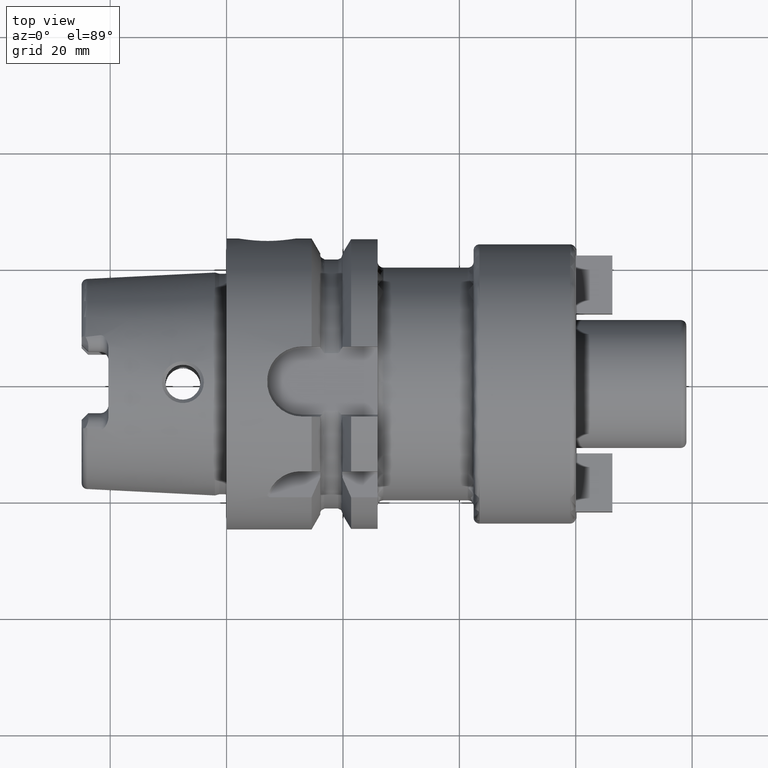
[diagram: clean part render]
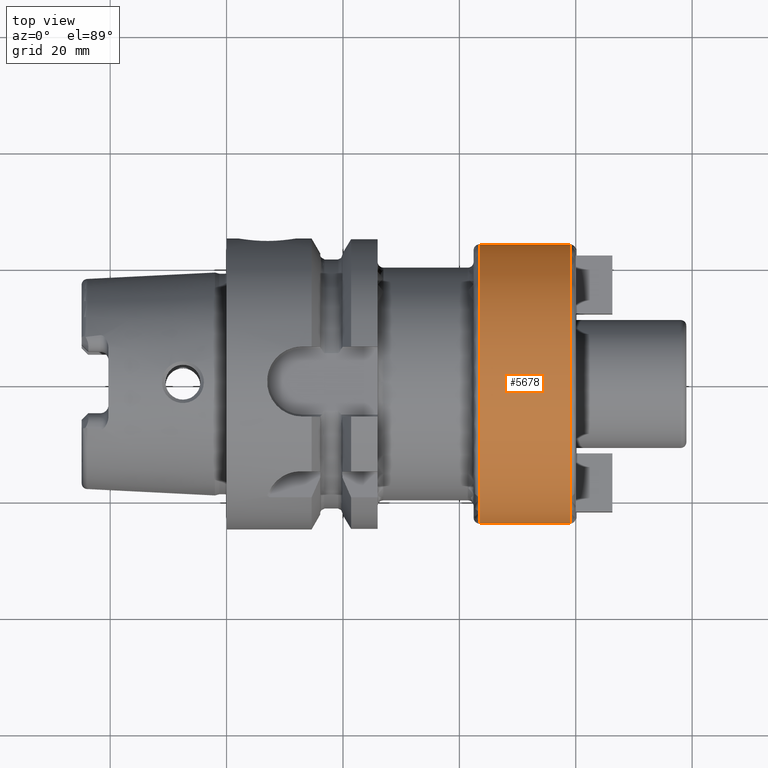
[diagram: same view with one face highlighted and labeled with its STEP entity id]
A machine part, top view. The second image highlights one B-rep face of the part: STEP entity #5678.
In plain terms, the highlighted cylindrical surface (partial cylindrical patch) has radius 24 mm, axis along (1, 0, 0).
Its self-contained STEP definition (entity closure, byte-faithful):
#2009=DIRECTION('',(-1.E0,0.E0,0.E0));
#2010=VECTOR('',#2009,1.555E1);
#2011=CARTESIAN_POINT('',(5.9E1,-2.4E1,1.722255507180E-13));
#2012=LINE('',#2011,#2010);
#2018=DIRECTION('',(-1.E0,0.E0,0.E0));
#2019=VECTOR('',#2018,1.555E1);
#2020=CARTESIAN_POINT('',(5.9E1,2.4E1,-1.729603387974E-13));
#2021=LINE('',#2020,#2019);
#2022=CARTESIAN_POINT('',(4.345E1,0.E0,0.E0));
#2023=DIRECTION('',(1.E0,0.E0,0.E0));
#2024=DIRECTION('',(0.E0,1.E0,0.E0));
#2025=AXIS2_PLACEMENT_3D('',#2022,#2023,#2024);
#2027=CARTESIAN_POINT('',(5.9E1,0.E0,0.E0));
#2028=DIRECTION('',(-1.E0,0.E0,0.E0));
#2029=DIRECTION('',(0.E0,-1.E0,0.E0));
#2030=AXIS2_PLACEMENT_3D('',#2027,#2028,#2029);
#3435=CARTESIAN_POINT('',(5.9E1,2.4E1,0.E0));
#3436=CARTESIAN_POINT('',(5.9E1,-2.4E1,0.E0));
#3437=VERTEX_POINT('',#3435);
#3438=VERTEX_POINT('',#3436);
#3538=CARTESIAN_POINT('',(4.345E1,-2.4E1,0.E0));
#3539=CARTESIAN_POINT('',(4.345E1,2.4E1,0.E0));
#3540=VERTEX_POINT('',#3538);
#3541=VERTEX_POINT('',#3539);
#5665=CARTESIAN_POINT('',(2.32975E1,0.E0,0.E0));
#5666=DIRECTION('',(1.E0,0.E0,0.E0));
#5667=DIRECTION('',(0.E0,-1.E0,0.E0));
#5668=AXIS2_PLACEMENT_3D('',#5665,#5666,#5667);
#5669=CYLINDRICAL_SURFACE('',#5668,2.4E1);
#5671=ORIENTED_EDGE('',*,*,#5670,.F.);
#5672=ORIENTED_EDGE('',*,*,#5660,.F.);
#5674=ORIENTED_EDGE('',*,*,#5673,.F.);
#5675=ORIENTED_EDGE('',*,*,#5656,.T.);
#5676=EDGE_LOOP('',(#5671,#5672,#5674,#5675));
#5677=FACE_OUTER_BOUND('',#5676,.F.);
#5678=ADVANCED_FACE('',(#5677),#5669,.T.);
#2026=CIRCLE('',#2025,2.4E1);
#2031=CIRCLE('',#2030,2.4E1);
#5656=EDGE_CURVE('',#3438,#3540,#2012,.T.);
#5660=EDGE_CURVE('',#3437,#3541,#2021,.T.);
#5670=EDGE_CURVE('',#3541,#3540,#2026,.T.);
#5673=EDGE_CURVE('',#3438,#3437,#2031,.T.);